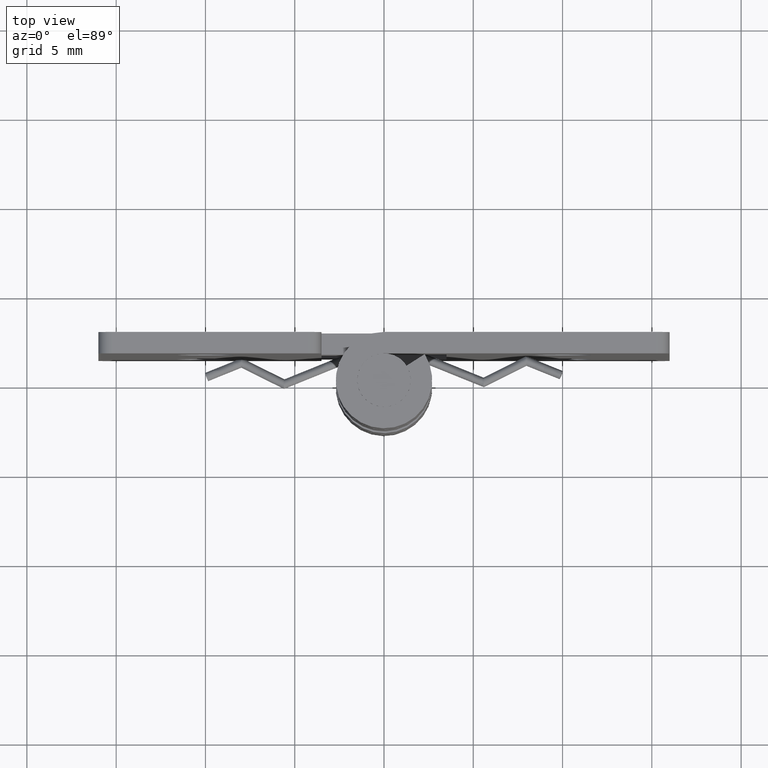
[diagram: clean part render]
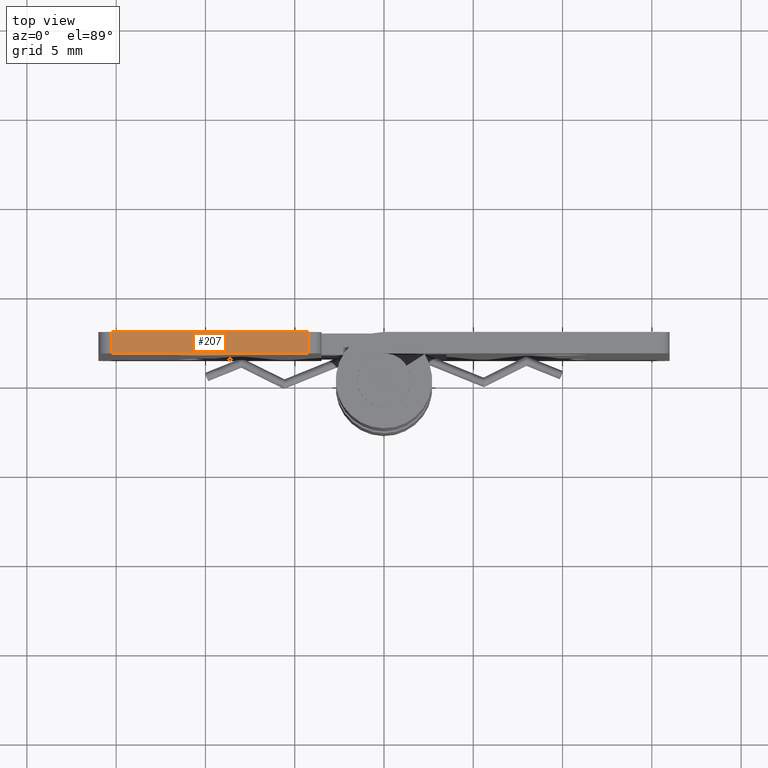
[diagram: same view with one face highlighted and labeled with its STEP entity id]
A machine part, top view. The second image highlights one B-rep face of the part: STEP entity #207.
In plain terms, the highlighted planar face has unit normal (0, 0, 1).
Its self-contained STEP definition (entity closure, byte-faithful):
#207=ADVANCED_FACE('',(#471),#470,.T.);
#470=PLANE('',#1076);
#471=FACE_OUTER_BOUND('',#1077,.T.);
#1073=CARTESIAN_POINT('',(-1.63500088000E+01,1.37999950000E+00,2.49999850000E+01));
#1074=DIRECTION('',(0.00000000000E+00,0.00000000000E+00,1.00000000000E+00));
#1075=DIRECTION('',(1.00000000000E+00,0.00000000000E+00,0.00000000000E+00));
#1076=AXIS2_PLACEMENT_3D('',#1073,#1074,#1075);
#1077=EDGE_LOOP('',(#3074,#3075,#3076,#3077));
#3074=ORIENTED_EDGE('',*,*,#3359,.F.);
#3075=ORIENTED_EDGE('',*,*,#3326,.F.);
#3076=ORIENTED_EDGE('',*,*,#3319,.F.);
#3077=ORIENTED_EDGE('',*,*,#3332,.F.);
#3319=EDGE_CURVE('',#3609,#3511,#3616,.T.);
#3326=EDGE_CURVE('',#3511,#3651,#3664,.T.);
#3332=EDGE_CURVE('',#3697,#3609,#3704,.T.);
#3359=EDGE_CURVE('',#3651,#3697,#3884,.T.);
#3511=VERTEX_POINT('',#4637);
#3609=VERTEX_POINT('',#4696);
#3616=LINE('',#4701,#4702);
#3651=VERTEX_POINT('',#4725);
#3664=LINE('',#4733,#4734);
#3697=VERTEX_POINT('',#4752);
#3704=LINE('',#4757,#4758);
#3884=LINE('',#4865,#4866);
#4637=CARTESIAN_POINT('',(-4.25000000000E+00,2.70000500000E+00,2.49999850000E+01));
#4696=CARTESIAN_POINT('',(-1.52500080000E+01,2.70000500000E+00,2.49999850000E+01));
#4701=CARTESIAN_POINT('',(-1.52500080000E+01,2.70000500000E+00,2.49999850000E+01));
#4702=VECTOR('',#4703,1.10000080000E+01);
#4703=DIRECTION('',(1.00000000000E+00,0.00000000000E+00,0.00000000000E+00));
#4725=CARTESIAN_POINT('',(-4.25000000000E+00,1.50000000000E+00,2.49999850000E+01));
#4733=CARTESIAN_POINT('',(-4.25000000000E+00,2.70000500000E+00,2.49999850000E+01));
#4734=VECTOR('',#4735,1.20000500000E+00);
#4735=DIRECTION('',(0.00000000000E+00,-1.00000000000E+00,0.00000000000E+00));
#4752=CARTESIAN_POINT('',(-1.52500080000E+01,1.50000000000E+00,2.49999850000E+01));
#4757=CARTESIAN_POINT('',(-1.52500080000E+01,1.50000000000E+00,2.49999850000E+01));
#4758=VECTOR('',#4759,1.20000500000E+00);
#4759=DIRECTION('',(0.00000000000E+00,1.00000000000E+00,0.00000000000E+00));
#4865=CARTESIAN_POINT('',(-4.25000000000E+00,1.50000000000E+00,2.49999850000E+01));
#4866=VECTOR('',#4867,1.10000080000E+01);
#4867=DIRECTION('',(-1.00000000000E+00,0.00000000000E+00,0.00000000000E+00));